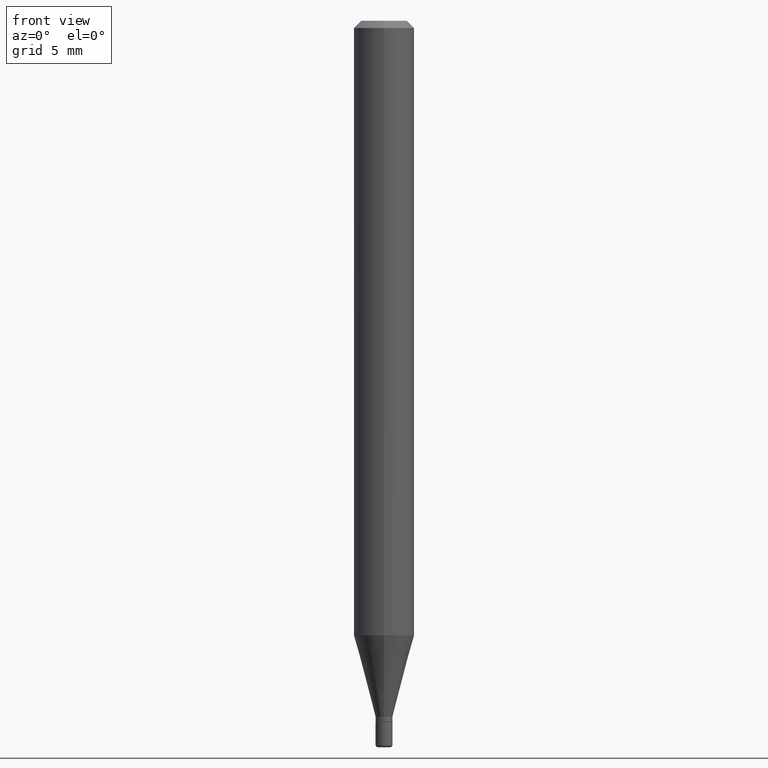
[diagram: clean part render]
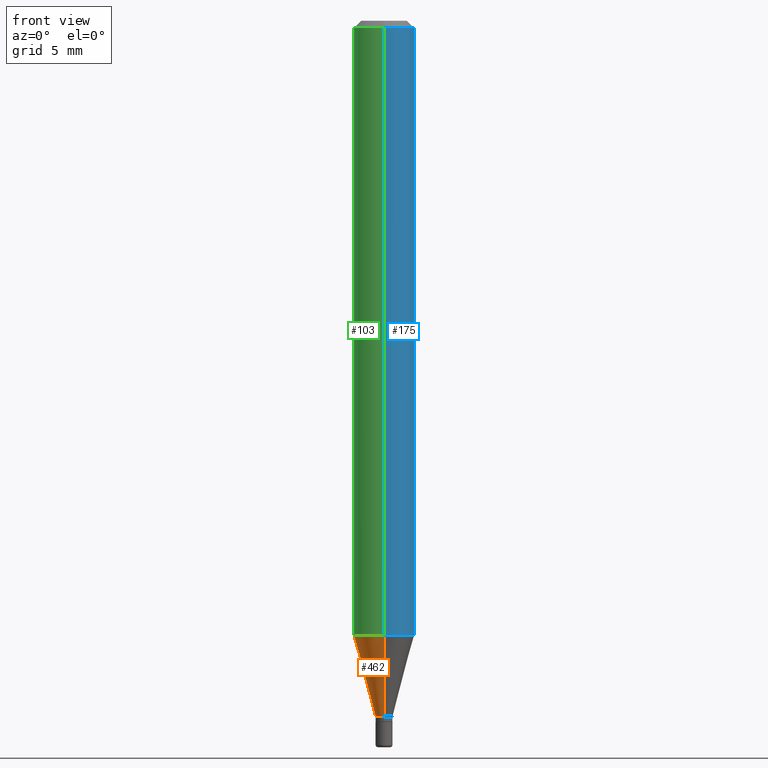
[diagram: same view with three faces highlighted in distinct colors, each labeled with its STEP entity id]
A machine part, front view with three faces highlighted in distinct colors.
Their STEP definitions:

[orange] entity #462 — the highlighted conical surface has half-angle 15 deg.
#32 = DIRECTION ( 'NONE',  ( -6.982962677686265922E-15, -1.000000000000000000, 4.370956789862821150E-15 ) ) ;
#70 = FACE_OUTER_BOUND ( 'NONE', #116, .T. ) ;
#73 = CARTESIAN_POINT ( 'NONE',  ( 3.103318880516645580E-29, -4.431066281678338175E-15, -1.269057713659401232 ) ) ;
#76 = ORIENTED_EDGE ( 'NONE', *, *, #482, .F. ) ;
#80 = CIRCLE ( 'NONE', #95, 0.01750000000000009187 ) ;
#83 = VERTEX_POINT ( 'NONE', #181 ) ;
#92 = ORIENTED_EDGE ( 'NONE', *, *, #409, .T. ) ;
#95 = AXIS2_PLACEMENT_3D ( 'NONE', #466, #104, #260 ) ;
#97 = EDGE_CURVE ( 'NONE', #246, #167, #266, .T. ) ;
#104 = DIRECTION ( 'NONE',  ( -2.445372536736762504E-29, 3.491619202172534245E-15, 1.000000000000000000 ) ) ;
#116 = EDGE_LOOP ( 'NONE', ( #446, #92, #125, #76 ) ) ;
#125 = ORIENTED_EDGE ( 'NONE', *, *, #473, .T. ) ;
#129 = CARTESIAN_POINT ( 'NONE',  ( -1.222018468594751745E-16, -0.01750000000000511216, -1.437000000000000277 ) ) ;
#167 = VERTEX_POINT ( 'NONE', #398 ) ;
#181 = CARTESIAN_POINT ( 'NONE',  ( -1.222018468594751745E-16, -0.01750000000000511216, -1.437000000000000277 ) ) ;
#182 = AXIS2_PLACEMENT_3D ( 'NONE', #73, #513, #32 ) ;
#208 = VECTOR ( 'NONE', #432, 39.37007874015748854 ) ;
#237 = DIRECTION ( 'NONE',  ( -1.807323732225323828E-15, -0.2588190451025172978, 0.9659258262890690894 ) ) ;
#246 = VERTEX_POINT ( 'NONE', #507 ) ;
#260 = DIRECTION ( 'NONE',  ( -6.982962677686266711E-15, -1.000000000000000000, 0.000000000000000000 ) ) ;
#261 = CARTESIAN_POINT ( 'NONE',  ( 1.243449787580533143E-16, 0.01749999999999507505, -1.437000000000000277 ) ) ;
#266 = LINE ( 'NONE', #261, #208 ) ;
#278 = CARTESIAN_POINT ( 'NONE',  ( 3.514000335290727898E-29, -5.017456793521932494E-15, -1.437000000000000277 ) ) ;
#318 = CONICAL_SURFACE ( 'NONE', #469, 0.01750000000000009187, 0.2617993877991494078 ) ;
#329 = CIRCLE ( 'NONE', #182, 0.06250000000000000000 ) ;
#360 = LINE ( 'NONE', #129, #427 ) ;
#398 = CARTESIAN_POINT ( 'NONE',  ( 4.440892098500933817E-16, 0.06249999999999555217, -1.269057713659401454 ) ) ;
#409 = EDGE_CURVE ( 'NONE', #246, #83, #80, .T. ) ;
#427 = VECTOR ( 'NONE', #237, 39.37007874015748854 ) ;
#432 = DIRECTION ( 'NONE',  ( 1.839019923739594004E-15, 0.2588190451025240701, 0.9659258262890673130 ) ) ;
#438 = CARTESIAN_POINT ( 'NONE',  ( -4.364351673553606573E-16, -0.06250000000000444089, -1.269057713659400788 ) ) ;
#441 = VERTEX_POINT ( 'NONE', #438 ) ;
#442 = DIRECTION ( 'NONE',  ( -2.445372536736762504E-29, 3.491619202172534245E-15, 1.000000000000000000 ) ) ;
#446 = ORIENTED_EDGE ( 'NONE', *, *, #97, .F. ) ;
#453 = DIRECTION ( 'NONE',  ( -6.982962677686266711E-15, -1.000000000000000000, 0.000000000000000000 ) ) ;
#462 = ADVANCED_FACE ( 'NONE', ( #70 ), #318, .T. ) ;
#466 = CARTESIAN_POINT ( 'NONE',  ( 3.514000335290727898E-29, -5.017456793521932494E-15, -1.437000000000000277 ) ) ;
#469 = AXIS2_PLACEMENT_3D ( 'NONE', #278, #442, #453 ) ;
#473 = EDGE_CURVE ( 'NONE', #83, #441, #360, .T. ) ;
#482 = EDGE_CURVE ( 'NONE', #167, #441, #329, .T. ) ;
#507 = CARTESIAN_POINT ( 'NONE',  ( 2.842170943040736069E-16, 0.01749999999999507505, -1.437000000000000277 ) ) ;
#513 = DIRECTION ( 'NONE',  ( -2.445372536736762504E-29, 3.491619202172534245E-15, 1.000000000000000000 ) ) ;

[blue] entity #175 — the highlighted cylindrical surface (edge-blend (fillet) strip) has radius 1.5875 mm, axis along (-0, 0, 1).
#3 = EDGE_CURVE ( 'NONE', #441, #167, #474, .T. ) ;
#18 = DIRECTION ( 'NONE',  ( -2.445372536736762504E-29, 3.491619202172534245E-15, 1.000000000000000000 ) ) ;
#41 = AXIS2_PLACEMENT_3D ( 'NONE', #147, #426, #98 ) ;
#45 = ORIENTED_EDGE ( 'NONE', *, *, #78, .T. ) ;
#51 = CARTESIAN_POINT ( 'NONE',  ( 4.440892098500625669E-16, 0.06250000000000000000, -2.182262001357833903E-16 ) ) ;
#78 = EDGE_CURVE ( 'NONE', #167, #450, #429, .T. ) ;
#98 = DIRECTION ( 'NONE',  ( -6.982962677686265922E-15, -1.000000000000000000, 4.370956789862821150E-15 ) ) ;
#110 = AXIS2_PLACEMENT_3D ( 'NONE', #428, #345, #234 ) ;
#147 = CARTESIAN_POINT ( 'NONE',  ( 3.103318880516645580E-29, -4.431066281678338175E-15, -1.269057713659401232 ) ) ;
#150 = LINE ( 'NONE', #298, #226 ) ;
#167 = VERTEX_POINT ( 'NONE', #398 ) ;
#175 = ADVANCED_FACE ( 'NONE', ( #242 ), #365, .T. ) ;
#193 = CARTESIAN_POINT ( 'NONE',  ( -4.364351673553912750E-16, -0.06250000000000005551, -0.01499999999999948597 ) ) ;
#211 = CARTESIAN_POINT ( 'NONE',  ( 4.440892098500937762E-16, 0.06249999999999993755, -0.01499999999999992138 ) ) ;
#226 = VECTOR ( 'NONE', #385, 39.37007874015748143 ) ;
#234 = DIRECTION ( 'NONE',  ( -6.982962677686265922E-15, -1.000000000000000000, 3.483106191921935554E-15 ) ) ;
#242 = FACE_OUTER_BOUND ( 'NONE', #363, .T. ) ;
#248 = VERTEX_POINT ( 'NONE', #193 ) ;
#257 = EDGE_CURVE ( 'NONE', #441, #248, #150, .T. ) ;
#279 = DIRECTION ( 'NONE',  ( -6.982962677686265922E-15, -1.000000000000000000, 3.491619202172534245E-15 ) ) ;
#293 = ORIENTED_EDGE ( 'NONE', *, *, #348, .F. ) ;
#295 = CIRCLE ( 'NONE', #110, 0.06250000000000000000 ) ;
#298 = CARTESIAN_POINT ( 'NONE',  ( -4.364351673553916201E-16, -0.06250000000000000000, 2.182262001357833903E-16 ) ) ;
#325 = AXIS2_PLACEMENT_3D ( 'NONE', #447, #439, #279 ) ;
#345 = DIRECTION ( 'NONE',  ( -2.445372536736762504E-29, 3.491619202172534245E-15, 1.000000000000000000 ) ) ;
#348 = EDGE_CURVE ( 'NONE', #248, #450, #295, .T. ) ;
#363 = EDGE_LOOP ( 'NONE', ( #404, #45, #293, #366 ) ) ;
#365 = CYLINDRICAL_SURFACE ( 'NONE', #325, 0.06250000000000000000 ) ;
#366 = ORIENTED_EDGE ( 'NONE', *, *, #257, .F. ) ;
#385 = DIRECTION ( 'NONE',  ( -2.445372536736762504E-29, 3.491619202172534245E-15, 1.000000000000000000 ) ) ;
#398 = CARTESIAN_POINT ( 'NONE',  ( 4.440892098500933817E-16, 0.06249999999999555217, -1.269057713659401454 ) ) ;
#404 = ORIENTED_EDGE ( 'NONE', *, *, #3, .T. ) ;
#426 = DIRECTION ( 'NONE',  ( -2.445372536736762504E-29, 3.491619202172534245E-15, 1.000000000000000000 ) ) ;
#428 = CARTESIAN_POINT ( 'NONE',  ( 3.668058805105071256E-31, -5.237428803258697805E-17, -0.01499999999999970281 ) ) ;
#429 = LINE ( 'NONE', #51, #500 ) ;
#438 = CARTESIAN_POINT ( 'NONE',  ( -4.364351673553606573E-16, -0.06250000000000444089, -1.269057713659400788 ) ) ;
#439 = DIRECTION ( 'NONE',  ( -2.445372536736762504E-29, 3.491619202172534245E-15, 1.000000000000000000 ) ) ;
#441 = VERTEX_POINT ( 'NONE', #438 ) ;
#447 = CARTESIAN_POINT ( 'NONE',  ( 0.000000000000000000, 0.000000000000000000, 0.000000000000000000 ) ) ;
#450 = VERTEX_POINT ( 'NONE', #211 ) ;
#474 = CIRCLE ( 'NONE', #41, 0.06250000000000000000 ) ;
#500 = VECTOR ( 'NONE', #18, 39.37007874015748143 ) ;

[green] entity #103 — the highlighted cylindrical surface (edge-blend (fillet) strip) has radius 1.5875 mm, axis along (-0, 0, 1).
#18 = DIRECTION ( 'NONE',  ( -2.445372536736762504E-29, 3.491619202172534245E-15, 1.000000000000000000 ) ) ;
#23 = FACE_OUTER_BOUND ( 'NONE', #89, .T. ) ;
#32 = DIRECTION ( 'NONE',  ( -6.982962677686265922E-15, -1.000000000000000000, 4.370956789862821150E-15 ) ) ;
#39 = ORIENTED_EDGE ( 'NONE', *, *, #257, .T. ) ;
#49 = ORIENTED_EDGE ( 'NONE', *, *, #136, .F. ) ;
#51 = CARTESIAN_POINT ( 'NONE',  ( 4.440892098500625669E-16, 0.06250000000000000000, -2.182262001357833903E-16 ) ) ;
#59 = DIRECTION ( 'NONE',  ( -2.445372536736762504E-29, 3.491619202172534245E-15, 1.000000000000000000 ) ) ;
#73 = CARTESIAN_POINT ( 'NONE',  ( 3.103318880516645580E-29, -4.431066281678338175E-15, -1.269057713659401232 ) ) ;
#78 = EDGE_CURVE ( 'NONE', #167, #450, #429, .T. ) ;
#89 = EDGE_LOOP ( 'NONE', ( #173, #448, #39, #49 ) ) ;
#103 = ADVANCED_FACE ( 'NONE', ( #23 ), #105, .T. ) ;
#105 = CYLINDRICAL_SURFACE ( 'NONE', #281, 0.06250000000000000000 ) ;
#136 = EDGE_CURVE ( 'NONE', #450, #248, #324, .T. ) ;
#150 = LINE ( 'NONE', #298, #226 ) ;
#167 = VERTEX_POINT ( 'NONE', #398 ) ;
#173 = ORIENTED_EDGE ( 'NONE', *, *, #78, .F. ) ;
#182 = AXIS2_PLACEMENT_3D ( 'NONE', #73, #513, #32 ) ;
#193 = CARTESIAN_POINT ( 'NONE',  ( -4.364351673553912750E-16, -0.06250000000000005551, -0.01499999999999948597 ) ) ;
#211 = CARTESIAN_POINT ( 'NONE',  ( 4.440892098500937762E-16, 0.06249999999999993755, -0.01499999999999992138 ) ) ;
#220 = CARTESIAN_POINT ( 'NONE',  ( 0.000000000000000000, 0.000000000000000000, 0.000000000000000000 ) ) ;
#226 = VECTOR ( 'NONE', #385, 39.37007874015748143 ) ;
#248 = VERTEX_POINT ( 'NONE', #193 ) ;
#257 = EDGE_CURVE ( 'NONE', #441, #248, #150, .T. ) ;
#281 = AXIS2_PLACEMENT_3D ( 'NONE', #220, #59, #459 ) ;
#298 = CARTESIAN_POINT ( 'NONE',  ( -4.364351673553916201E-16, -0.06250000000000000000, 2.182262001357833903E-16 ) ) ;
#316 = DIRECTION ( 'NONE',  ( -6.982962677686265922E-15, -1.000000000000000000, 3.483106191921935554E-15 ) ) ;
#324 = CIRCLE ( 'NONE', #433, 0.06250000000000000000 ) ;
#329 = CIRCLE ( 'NONE', #182, 0.06250000000000000000 ) ;
#385 = DIRECTION ( 'NONE',  ( -2.445372536736762504E-29, 3.491619202172534245E-15, 1.000000000000000000 ) ) ;
#398 = CARTESIAN_POINT ( 'NONE',  ( 4.440892098500933817E-16, 0.06249999999999555217, -1.269057713659401454 ) ) ;
#406 = DIRECTION ( 'NONE',  ( -2.445372536736762504E-29, 3.491619202172534245E-15, 1.000000000000000000 ) ) ;
#429 = LINE ( 'NONE', #51, #500 ) ;
#433 = AXIS2_PLACEMENT_3D ( 'NONE', #515, #406, #316 ) ;
#438 = CARTESIAN_POINT ( 'NONE',  ( -4.364351673553606573E-16, -0.06250000000000444089, -1.269057713659400788 ) ) ;
#441 = VERTEX_POINT ( 'NONE', #438 ) ;
#448 = ORIENTED_EDGE ( 'NONE', *, *, #482, .T. ) ;
#450 = VERTEX_POINT ( 'NONE', #211 ) ;
#459 = DIRECTION ( 'NONE',  ( -6.982962677686265922E-15, -1.000000000000000000, 3.491619202172534245E-15 ) ) ;
#482 = EDGE_CURVE ( 'NONE', #167, #441, #329, .T. ) ;
#500 = VECTOR ( 'NONE', #18, 39.37007874015748143 ) ;
#513 = DIRECTION ( 'NONE',  ( -2.445372536736762504E-29, 3.491619202172534245E-15, 1.000000000000000000 ) ) ;
#515 = CARTESIAN_POINT ( 'NONE',  ( 3.668058805105071256E-31, -5.237428803258697805E-17, -0.01499999999999970281 ) ) ;